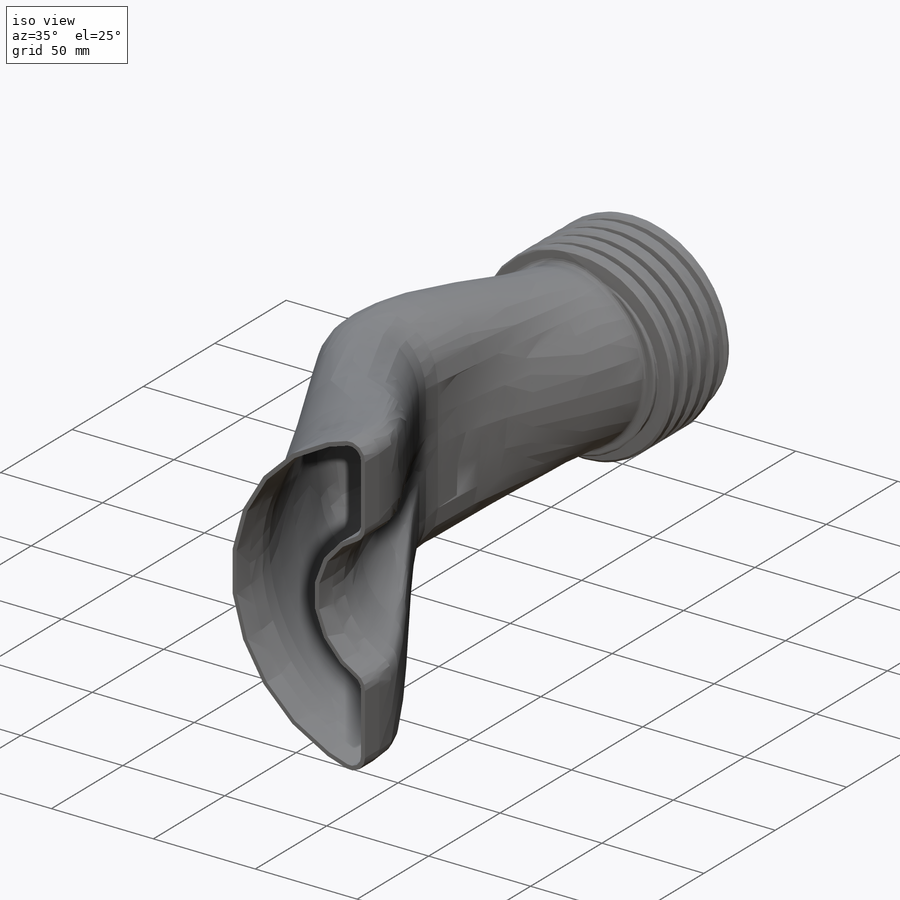
[diagram: iso view]
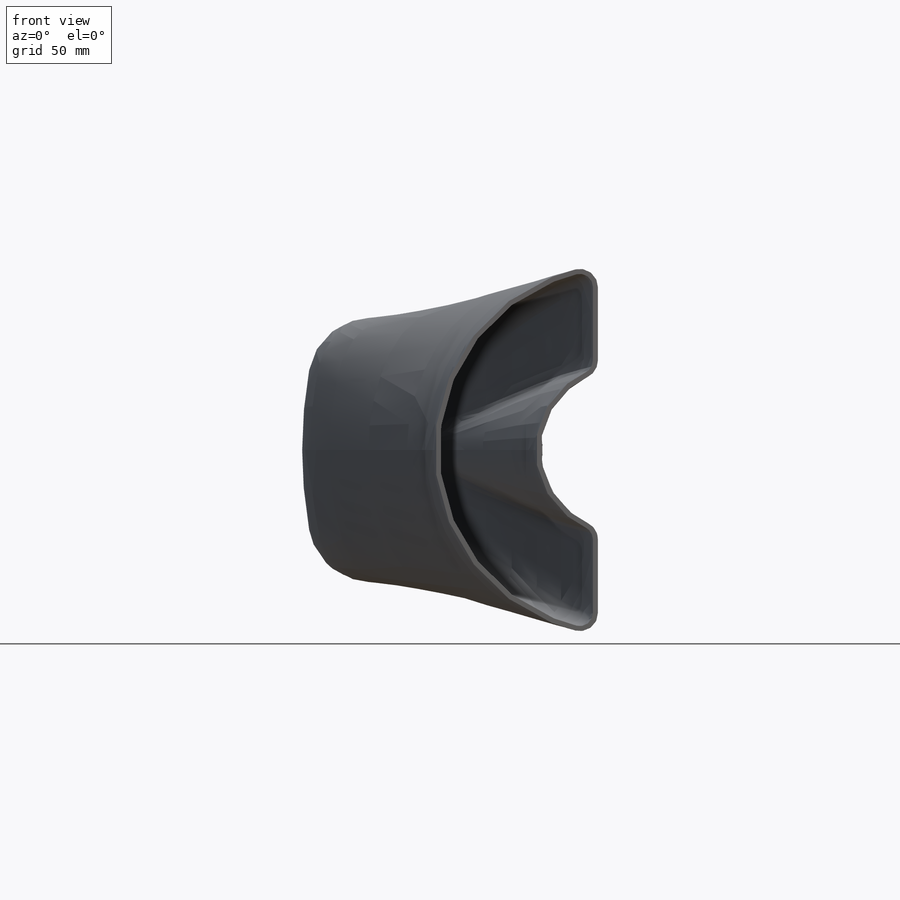
[diagram: front view]
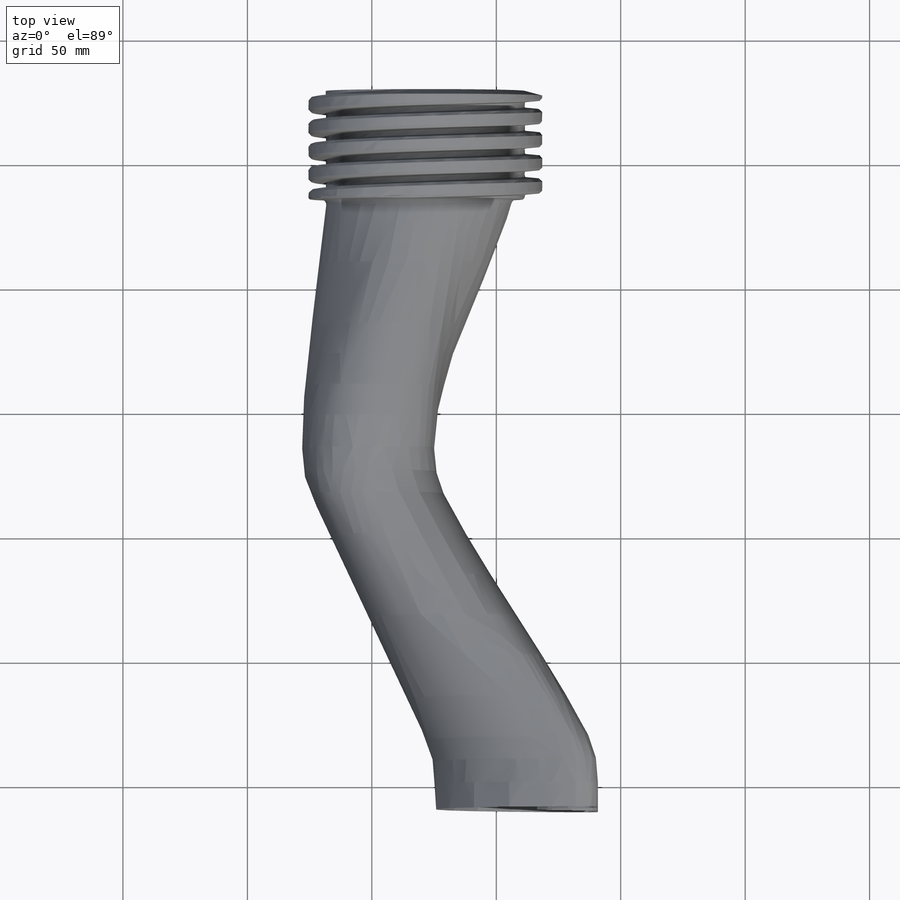
[diagram: top view]
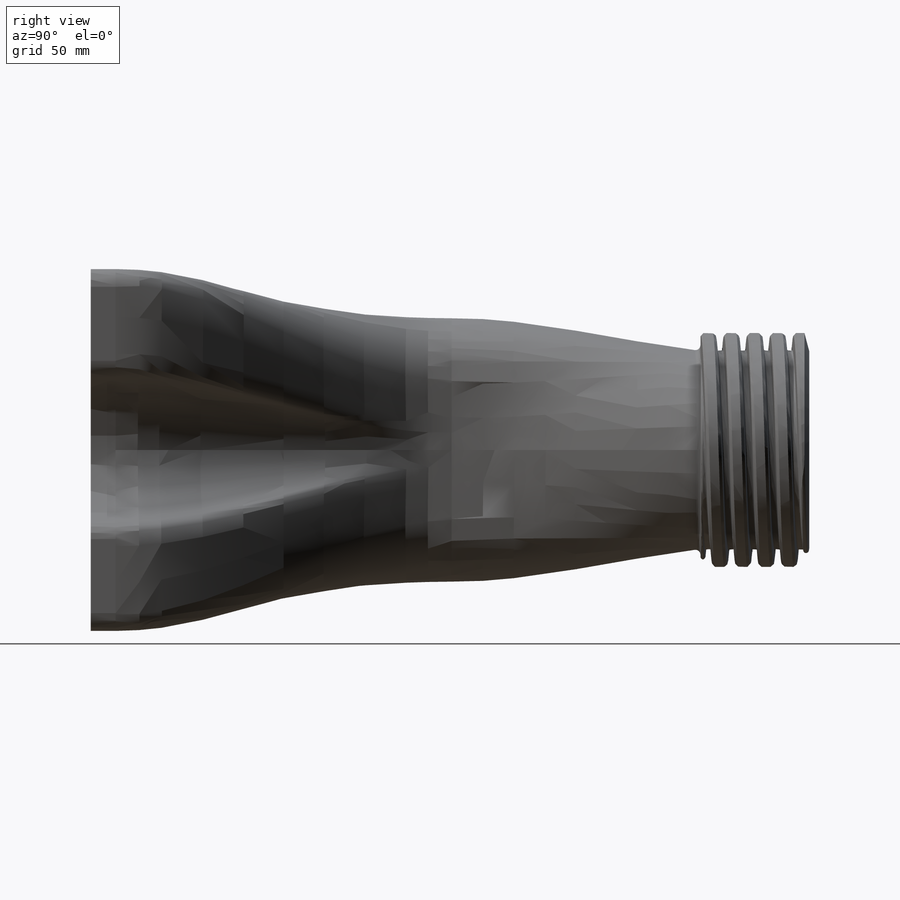
[diagram: right view]
SOLIDWORKS PART (.sldprt)
format: sldprt  version: not decoded by parser v0  size: 1,470,976 bytes
history: native  units: mm
features: sketch x14, fillet x6, extrude x4, plane x3, chamfer x2, material x1, mirror x1, shell x1, helix x1, sweep x1, cut_revolve x1, cut_extrude x1 (+11 scaffold rows collapsed)
feature tree (47):
  scaffold x11  (default folders/planes/origin — collapsed)
  material  "ABS"
  plane  "rec"  Offset=135mm
  plane  "rnd"  Offset=125mm
  sketch  "rough target"
  sketch  "D"  dims[D1=149.6mm D2=64.4mm D4=7.2mm D3=9.2mm D5=100.0mm]
  sketch  "s rec"  dims[c1.D3=185.0mm c1.D1=95.0mm c1.D2=106.0mm c2.D3=40.0mm c2.D1=75.0mm c2.D4=57.0mm]
  sketch  "loft"  dims[D1=40.0mm D2=2.0mm]
  sketch  "Sketch6"
  sketch  "s rnd"  dims[D1=77.0mm D2=40.0mm]
  mirror  "Mirror1"
  sketch  "Sketch7"
  extrude  "Boss-Extrude3"  Depth=10mm
  sketch  "Sketch8"
  extrude  "Boss-Extrude4"  Depth=20mm
  shell  "Shell1"  Thickness=2mm
  sketch  "Sketch9"  dims[D1=94.0mm]
  extrude  "Boss-Extrude5"  Depth=45mm
  sketch  "Sketch13"
  extrude  "Boss-Extrude6"  [1 undecoded]
  plane  "Plane1"
  sketch  "Sketch11"  dims[D1=2.3mm D2=3.5mm D3=80.0mm]
  sketch  "Sketch12"
  helix  "Helix/Spiral1"  Pitch=45mm
  sweep  "Cut-Sweep2"
  sketch  "Sketch14"  dims[c1.D1=20.0mm c1.D2=~20.066585mm c2.D2=15.0deg c2.D3=70.0mm c2.D4=~13.986456mm c3.D4=15.0deg]
  cut_revolve  "Cut-Revolve1"  Angle=360deg
  sketch  "Sketch16"  dims[D1=85.0mm]
  cut_extrude  "Cut-Extrude3"  Depth=2mm
  chamfer  "Chamfer3"  Distance=1mm Angle=45deg
  fillet  "Fillet2"  Radius=1mm
  fillet  "Fillet3"  Radius=1mm
  fillet  "Fillet5"  Radius=1mm
  fillet  "Fillet4"  Radius=2mm
  chamfer  "Chamfer4"  Distance=3mm Angle=45deg
  fillet  "Fillet6"  Radius=2mm
  fillet  "Fillet7"  Radius=0.5mm
decode coverage: 23 of 32 modeling features carry decoded parameters
note: ~ marks probable driven/reference dimensions
note: 1 parameter value undecoded
note: suppression state not decoded; provenance and decode notes live in map.json
